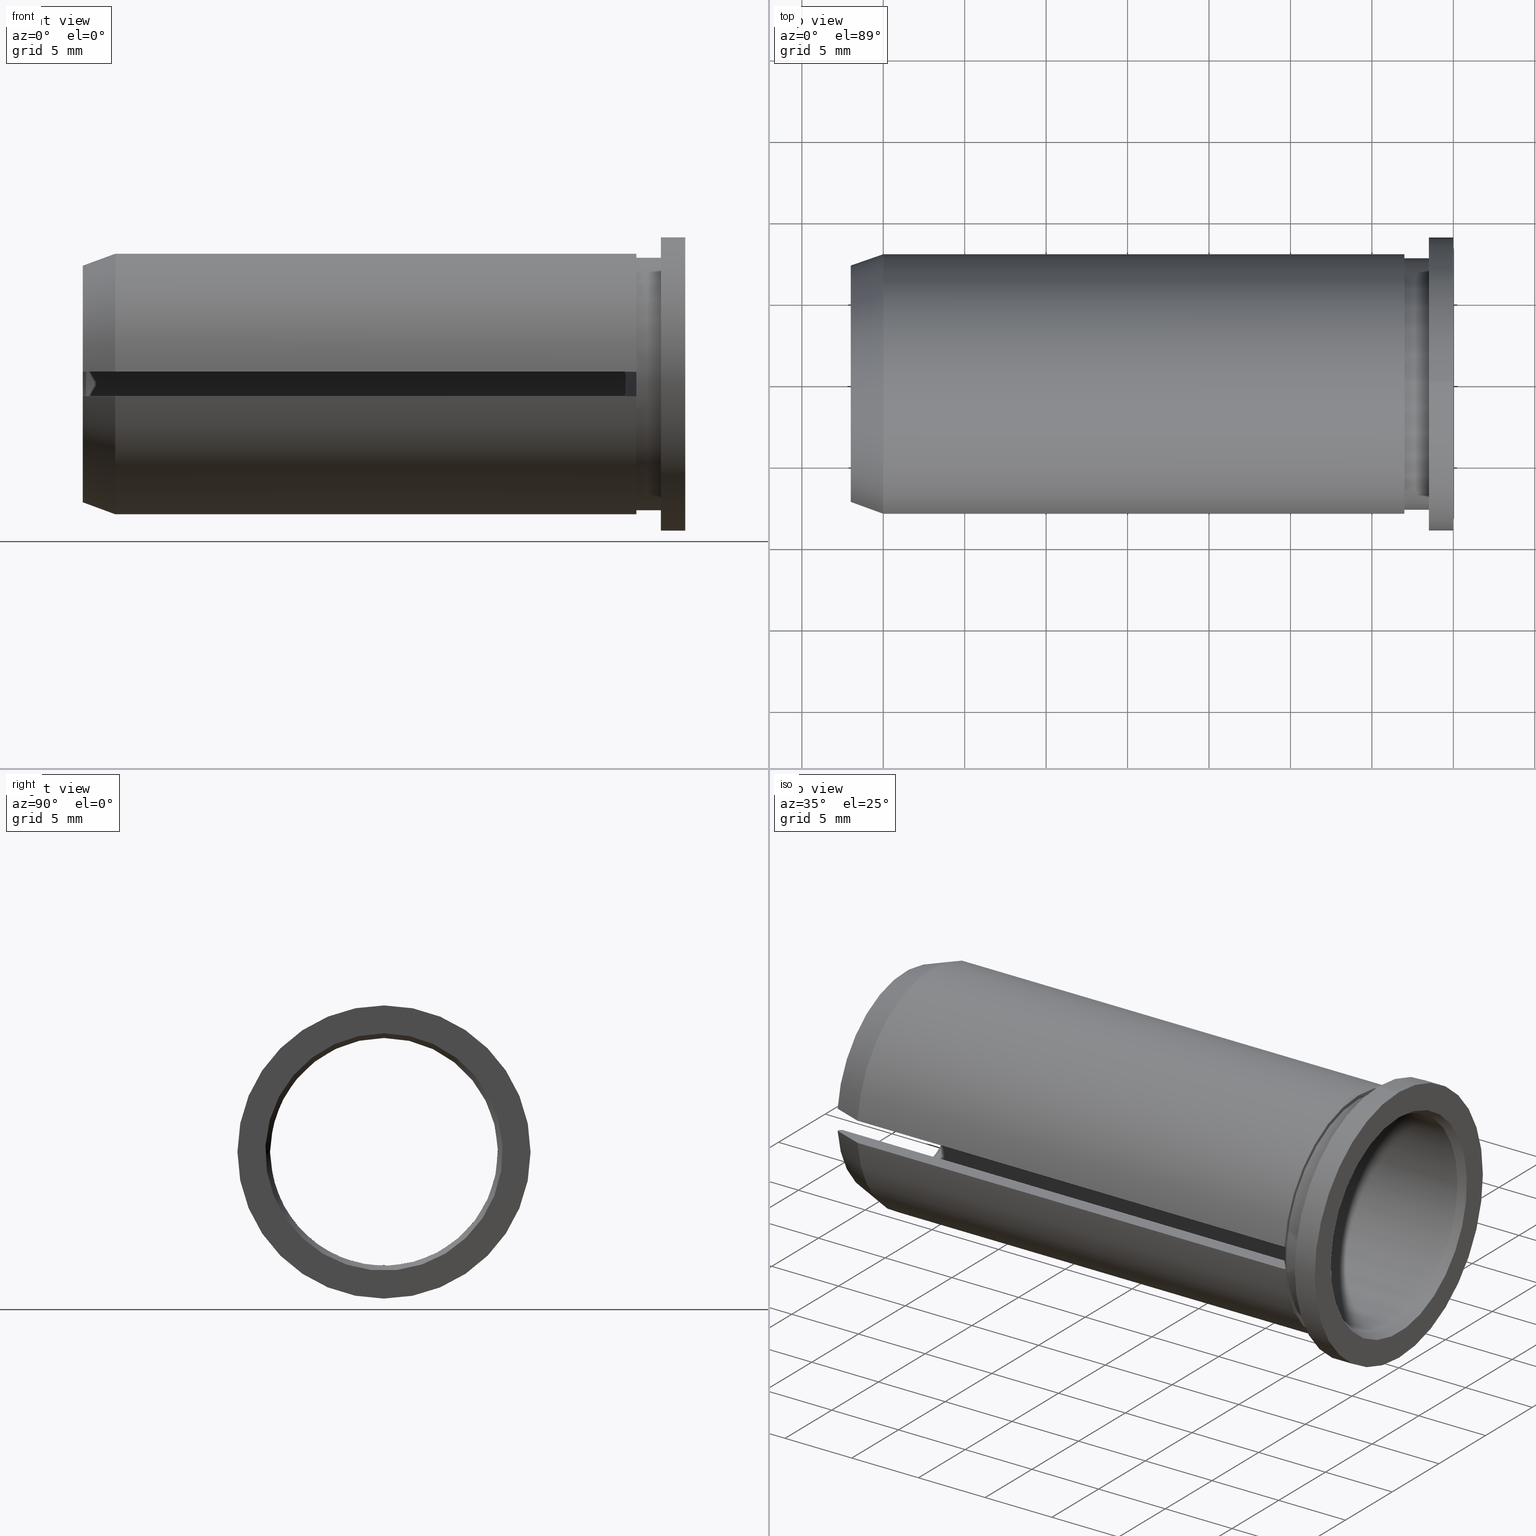
[diagram: canonical four-view strip — front | top / right | iso, engineering-drawing reading convention]
A machine part, canonical four-view strip (front | top / right | iso — engineering-drawing reading convention). The complete STEP part file that produces these views, byte-faithful:
ISO-10303-21;
HEADER;
FILE_DESCRIPTION (( 'STEP AP214' ),
    '1' );
FILE_NAME ('U14.U16.001.037.STEP',
    '2020-08-14T11:08:36',
    ( '' ),
    ( '' ),
    'SwSTEP 2.0',
    'SolidWorks 2017',
    '' );
FILE_SCHEMA (( 'AUTOMOTIVE_DESIGN' ));
ENDSEC;

DATA;
#1 = AXIS2_PLACEMENT_3D ( 'NONE', #269, #412, #409 ) ;
#2 = ADVANCED_FACE ( 'NONE', ( #213, #77 ), #13, .F. ) ;
#3 = DIRECTION ( 'NONE',  ( 0.0000000000000000000, 0.0000000000000000000, -1.000000000000000000 ) ) ;
#4 = FACE_OUTER_BOUND ( 'NONE', #261, .T. ) ;
#5 = ORIENTED_EDGE ( 'NONE', *, *, #322, .F. ) ;
#6 = DIRECTION ( 'NONE',  ( -0.0000000000000000000, 0.0000000000000000000, -1.000000000000000000 ) ) ;
#7 = ADVANCED_FACE ( 'NONE', ( #131 ), #18, .F. ) ;
#8 = EDGE_LOOP ( 'NONE', ( #389, #229, #251, #215 ) ) ;
#9 = FILL_AREA_STYLE_COLOUR ( '', #265 ) ;
#10 = CARTESIAN_POINT ( 'NONE',  ( -0.5000000000000004400, 0.0000000000000000000, 7.000000000000000000 ) ) ;
#11 = AXIS2_PLACEMENT_3D ( 'NONE', #212, #105, #3 ) ;
#12 =( LENGTH_UNIT ( ) NAMED_UNIT ( * ) SI_UNIT ( .MILLI., .METRE. ) );
#13 = CONICAL_SURFACE ( 'NONE', #17, 7.000000000000000000, 0.5235987755983001500 ) ;
#14 = ADVANCED_BREP_SHAPE_REPRESENTATION ( 'U14.U16.001.037', ( #406, #148 ), #88 ) ;
#15 = VERTEX_POINT ( 'NONE', #203 ) ;
#16 = DIRECTION ( 'NONE',  ( -0.0000000000000000000, 0.0000000000000000000, 1.000000000000000000 ) ) ;
#17 = AXIS2_PLACEMENT_3D ( 'NONE', #50, #116, #411 ) ;
#18 = CYLINDRICAL_SURFACE ( 'NONE', #29, 31.50000000000000700 ) ;
#19 = DIRECTION ( 'NONE',  ( -1.000000000000000000, -0.0000000000000000000, -0.0000000000000000000 ) ) ;
#20 = VERTEX_POINT ( 'NONE', #89 ) ;
#21 = EDGE_CURVE ( 'NONE', #301, #301, #206, .T. ) ;
#22 = DIRECTION ( 'NONE',  ( 0.0000000000000000000, -1.000000000000000000, 0.0000000000000000000 ) ) ;
#23 = VERTEX_POINT ( 'NONE', #10 ) ;
#24 = VECTOR ( 'NONE', #147, 1000.000000000000000 ) ;
#25 =( GEOMETRIC_REPRESENTATION_CONTEXT ( 3 ) GLOBAL_UNCERTAINTY_ASSIGNED_CONTEXT ( ( #30 ) ) GLOBAL_UNIT_ASSIGNED_CONTEXT ( ( #172, #361, #228 ) ) REPRESENTATION_CONTEXT ( 'NONE', 'WORKASPACE' ) );
#26 = ORIENTED_EDGE ( 'NONE', *, *, #390, .F. ) ;
#27 = CARTESIAN_POINT ( 'NONE',  ( -3.000000000000000900, 7.750000000000000000, -0.7500000000000000000 ) ) ;
#28 = CARTESIAN_POINT ( 'NONE',  ( -34.99999999999999300, -7.964766161036994400, -0.7500000000000000000 ) ) ;
#29 = AXIS2_PLACEMENT_3D ( 'NONE', #235, #369, #270 ) ;
#30 = UNCERTAINTY_MEASURE_WITH_UNIT (LENGTH_MEASURE( 1.000000000000000100E-005 ), #172, 'distance_accuracy_value', 'NONE');
#31 = DIRECTION ( 'NONE',  ( -1.000000000000000000, 0.0000000000000000000, 0.0000000000000000000 ) ) ;
#32 = DIRECTION ( 'NONE',  ( -1.000000000000000000, -0.0000000000000000000, -0.0000000000000000000 ) ) ;
#33 = COLOUR_RGB ( '',0.6509803921568627600, 0.6196078431372549200, 0.5882352941176470800 ) ;
#34 = EDGE_LOOP ( 'NONE', ( #287, #90, #319, #293 ) ) ;
#35 = B_SPLINE_CURVE_WITH_KNOTS ( 'NONE', 3,
 ( #368, #305, #302, #337 ),
 .UNSPECIFIED., .F., .F.,
 ( 4, 4 ),
 ( 0.0000000000000000000, 0.001500000000000000000 ),
 .UNSPECIFIED. ) ;
#36 = AXIS2_PLACEMENT_3D ( 'NONE', #384, #129, #71 ) ;
#37 = ADVANCED_FACE ( 'NONE', ( #187 ), #383, .F. ) ;
#38 = PRODUCT_DEFINITION_SHAPE ( 'NONE', 'NONE',  #185 ) ;
#39 = CIRCLE ( 'NONE', #386, 9.000000000000000000 ) ;
#40 = VERTEX_POINT ( 'NONE', #174 ) ;
#41 = EDGE_CURVE ( 'NONE', #20, #314, #244, .T. ) ;
#42 = ADVANCED_FACE ( 'NONE', ( #142, #102 ), #44, .F. ) ;
#43 = DIRECTION ( 'NONE',  ( -0.0000000000000000000, 0.0000000000000000000, -1.000000000000000000 ) ) ;
#44 = CYLINDRICAL_SURFACE ( 'NONE', #362, 7.000000000000000000 ) ;
#45 = PRODUCT_CONTEXT ( 'NONE', #231, 'mechanical' ) ;
#46 = CARTESIAN_POINT ( 'NONE',  ( 0.0000000000000000000, 0.0000000000000000000, 0.0000000000000000000 ) ) ;
#47 = EDGE_CURVE ( 'NONE', #234, #240, #200, .T. ) ;
#48 = FACE_BOUND ( 'NONE', #74, .T. ) ;
#49 = APPLICATION_PROTOCOL_DEFINITION ( 'draft international standard', 'automotive_design', 1998, #231 ) ;
#50 = CARTESIAN_POINT ( 'NONE',  ( -0.5000000000000004400, 0.0000000000000000000, 0.0000000000000000000 ) ) ;
#51 = AXIS2_PLACEMENT_3D ( 'NONE', #216, #357, #222 ) ;
#52 = EDGE_LOOP ( 'NONE', ( #162 ) ) ;
#53 = EDGE_LOOP ( 'NONE', ( #193 ) ) ;
#54 = DIRECTION ( 'NONE',  ( -1.000000000000000000, -0.0000000000000000000, -0.0000000000000000000 ) ) ;
#55 = EDGE_CURVE ( 'NONE', #202, #15, #95, .T. ) ;
#56 = DIRECTION ( 'NONE',  ( 0.0000000000000000000, 0.0000000000000000000, -1.000000000000000000 ) ) ;
#57 = CARTESIAN_POINT ( 'NONE',  ( -36.79999999999999700, -6.959705453537528000, 0.7500000000000000000 ) ) ;
#58 = AXIS2_PLACEMENT_3D ( 'NONE', #232, #199, #16 ) ;
#59 = FACE_OUTER_BOUND ( 'NONE', #338, .T. ) ;
#60 = EDGE_LOOP ( 'NONE', ( #132 ) ) ;
#61 = CARTESIAN_POINT ( 'NONE',  ( -3.000000000000002700, -7.964766161036996200, 0.7500000000000000000 ) ) ;
#62 = EDGE_CURVE ( 'NONE', #86, #100, #154, .T. ) ;
#63 = DIRECTION ( 'NONE',  ( -1.000000000000000000, 0.0000000000000000000, 0.0000000000000000000 ) ) ;
#64 = B_SPLINE_CURVE_WITH_KNOTS ( 'NONE', 3,
 ( #243, #311, #382, #57 ),
 .UNSPECIFIED., .F., .F.,
 ( 4, 4 ),
 ( 0.008159521160765015300, 0.008390790686471119900 ),
 .UNSPECIFIED. ) ;
#65 = EDGE_CURVE ( 'NONE', #72, #72, #39, .T. ) ;
#66 = B_SPLINE_CURVE_WITH_KNOTS ( 'NONE', 3,
 ( #70, #75, #290, #315 ),
 .UNSPECIFIED., .F., .F.,
 ( 4, 4 ),
 ( 0.009711911398750116400, 0.01184148182100318500 ),
 .UNSPECIFIED. ) ;
#67 = EDGE_CURVE ( 'NONE', #303, #394, #35, .T. ) ;
#68 = ADVANCED_FACE ( 'NONE', ( #370, #48 ), #373, .F. ) ;
#69 = ORIENTED_EDGE ( 'NONE', *, *, #427, .T. ) ;
#70 = CARTESIAN_POINT ( 'NONE',  ( -34.99999999999999300, -7.964766161036994400, 0.7500000000000000000 ) ) ;
#71 = DIRECTION ( 'NONE',  ( 0.0000000000000000000, 0.0000000000000000000, 1.000000000000000000 ) ) ;
#72 = VERTEX_POINT ( 'NONE', #195 ) ;
#73 = CIRCLE ( 'NONE', #424, 7.115470053837925400 ) ;
#74 = EDGE_LOOP ( 'NONE', ( #166 ) ) ;
#75 = CARTESIAN_POINT ( 'NONE',  ( -35.66670156923833400, -7.721033178614087300, 0.7500000000000000000 ) ) ;
#76 =( GEOMETRIC_REPRESENTATION_CONTEXT ( 3 ) GLOBAL_UNCERTAINTY_ASSIGNED_CONTEXT ( ( #247 ) ) GLOBAL_UNIT_ASSIGNED_CONTEXT ( ( #262, #263, #227 ) ) REPRESENTATION_CONTEXT ( 'NONE', 'WORKASPACE' ) );
#77 = FACE_BOUND ( 'NONE', #273, .T. ) ;
#78 = CARTESIAN_POINT ( 'NONE',  ( 0.0000000000000000000, 0.0000000000000000000, 7.288675134594814000 ) ) ;
#79 = ORIENTED_EDGE ( 'NONE', *, *, #177, .T. ) ;
#80 = CARTESIAN_POINT ( 'NONE',  ( -38.58775536857143600, -6.959705453537528000, -0.7500000000000000000 ) ) ;
#81 = AXIS2_PLACEMENT_3D ( 'NONE', #139, #253, #355 ) ;
#82 = DIRECTION ( 'NONE',  ( 1.000000000000000000, 0.0000000000000000000, 0.0000000000000000000 ) ) ;
#83 = EDGE_CURVE ( 'NONE', #20, #135, #377, .T. ) ;
#84 = CIRCLE ( 'NONE', #36, 7.272059531467589500 ) ;
#85 = DIRECTION ( 'NONE',  ( -1.000000000000000000, -0.0000000000000000000, -0.0000000000000000000 ) ) ;
#86 = VERTEX_POINT ( 'NONE', #340 ) ;
#87 = DIRECTION ( 'NONE',  ( 0.0000000000000000000, 0.0000000000000000000, 1.000000000000000000 ) ) ;
#88 =( GEOMETRIC_REPRESENTATION_CONTEXT ( 3 ) GLOBAL_UNCERTAINTY_ASSIGNED_CONTEXT ( ( #423 ) ) GLOBAL_UNIT_ASSIGNED_CONTEXT ( ( #12, #110, #329 ) ) REPRESENTATION_CONTEXT ( 'NONE', 'WORKASPACE' ) );
#89 = CARTESIAN_POINT ( 'NONE',  ( -3.000000000000002700, -7.836232103263177400, 0.7500000000000000000 ) ) ;
#90 = ORIENTED_EDGE ( 'NONE', *, *, #159, .T. ) ;
#91 = EDGE_CURVE ( 'NONE', #240, #86, #64, .T. ) ;
#92 = CARTESIAN_POINT ( 'NONE',  ( -36.79999999999999700, -6.959705453537528000, -0.7500000000000000000 ) ) ;
#93 = VERTEX_POINT ( 'NONE', #78 ) ;
#94 = CARTESIAN_POINT ( 'NONE',  ( 0.0000000000000000000, 0.0000000000000000000, 0.0000000000000000000 ) ) ;
#95 = LINE ( 'NONE', #118, #24 ) ;
#96 = ORIENTED_EDGE ( 'NONE', *, *, #390, .T. ) ;
#97 = AXIS2_PLACEMENT_3D ( 'NONE', #258, #43, #257 ) ;
#98 = CARTESIAN_POINT ( 'NONE',  ( -34.99999999999999300, -7.964766161036994400, 0.7500000000000000000 ) ) ;
#99 = EDGE_LOOP ( 'NONE', ( #339 ) ) ;
#100 = VERTEX_POINT ( 'NONE', #92 ) ;
#101 = EDGE_CURVE ( 'NONE', #40, #202, #316, .T. ) ;
#102 = FACE_OUTER_BOUND ( 'NONE', #125, .T. ) ;
#103 = ORIENTED_EDGE ( 'NONE', *, *, #133, .T. ) ;
#104 = PLANE ( 'NONE',  #310 ) ;
#105 = DIRECTION ( 'NONE',  ( 1.000000000000000000, 0.0000000000000000000, 0.0000000000000000000 ) ) ;
#106 = LINE ( 'NONE', #183, #307 ) ;
#107 = ORIENTED_EDGE ( 'NONE', *, *, #101, .T. ) ;
#108 = SURFACE_STYLE_USAGE ( .BOTH. , #363 ) ;
#109 = MECHANICAL_DESIGN_GEOMETRIC_PRESENTATION_REPRESENTATION (  '', ( #404 ), #25 ) ;
#110 =( NAMED_UNIT ( * ) PLANE_ANGLE_UNIT ( ) SI_UNIT ( $, .RADIAN. ) );
#111 = EDGE_CURVE ( 'NONE', #240, #15, #73, .T. ) ;
#112 = LINE ( 'NONE', #123, #282 ) ;
#113 = CARTESIAN_POINT ( 'NONE',  ( -3.696983839633665600, -6.959705453537527100, 0.7500000000000000000 ) ) ;
#114 = CARTESIAN_POINT ( 'NONE',  ( -37.00000000000000000, 7.272059531467589500, 0.7500000000000000000 ) ) ;
#115 = AXIS2_PLACEMENT_3D ( 'NONE', #126, #178, #276 ) ;
#116 = DIRECTION ( 'NONE',  ( 1.000000000000000000, 0.0000000000000000000, 0.0000000000000000000 ) ) ;
#117 = FACE_OUTER_BOUND ( 'NONE', #245, .T. ) ;
#118 = CARTESIAN_POINT ( 'NONE',  ( -37.00000000000000000, 7.272059531467589500, -0.7500000000000000000 ) ) ;
#119 = ORIENTED_EDGE ( 'NONE', *, *, #62, .T. ) ;
#120 = ORIENTED_EDGE ( 'NONE', *, *, #122, .T. ) ;
#121 = CARTESIAN_POINT ( 'NONE',  ( -37.00000000000000000, 0.0000000000000000000, 0.0000000000000000000 ) ) ;
#122 = EDGE_CURVE ( 'NONE', #135, #359, #112, .T. ) ;
#123 = CARTESIAN_POINT ( 'NONE',  ( -38.58775536857143600, -7.964766161036994400, 0.7500000000000000000 ) ) ;
#124 = CIRCLE ( 'NONE', #318, 31.50000000000000700 ) ;
#125 = EDGE_LOOP ( 'NONE', ( #119, #69, #415, #372 ) ) ;
#126 = CARTESIAN_POINT ( 'NONE',  ( -3.000000000000000900, 7.750000000000000000, 0.0000000000000000000 ) ) ;
#127 = DIRECTION ( 'NONE',  ( 0.0000000000000000000, -1.000000000000000000, 0.0000000000000000000 ) ) ;
#128 = CARTESIAN_POINT ( 'NONE',  ( -38.58775536857143600, 0.0000000000000000000, 0.0000000000000000000 ) ) ;
#129 = DIRECTION ( 'NONE',  ( -1.000000000000000000, -0.0000000000000000000, -0.0000000000000000000 ) ) ;
#130 = FACE_OUTER_BOUND ( 'NONE', #175, .T. ) ;
#131 = FACE_OUTER_BOUND ( 'NONE', #176, .T. ) ;
#132 = ORIENTED_EDGE ( 'NONE', *, *, #252, .F. ) ;
#133 = EDGE_CURVE ( 'NONE', #86, #394, #291, .T. ) ;
#134 = CIRCLE ( 'NONE', #81, 7.999999999999996400 ) ;
#135 = VERTEX_POINT ( 'NONE', #61 ) ;
#136 = PLANE ( 'NONE',  #274 ) ;
#137 = CARTESIAN_POINT ( 'NONE',  ( -3.000000000000002700, -7.964766161036996200, -0.7500000000000000000 ) ) ;
#138 = ADVANCED_FACE ( 'NONE', ( #197, #192 ), #241, .F. ) ;
#139 = CARTESIAN_POINT ( 'NONE',  ( -34.99999999999999300, 0.0000000000000000000, 0.0000000000000000000 ) ) ;
#140 = VECTOR ( 'NONE', #22, 1000.000000000000000 ) ;
#141 = ORIENTED_EDGE ( 'NONE', *, *, #83, .F. ) ;
#142 = FACE_OUTER_BOUND ( 'NONE', #60, .T. ) ;
#143 = PRODUCT_RELATED_PRODUCT_CATEGORY ( 'part', '', ( #158 ) ) ;
#144 = SURFACE_SIDE_STYLE ('',( #219 ) ) ;
#145 = FACE_OUTER_BOUND ( 'NONE', #402, .T. ) ;
#146 = ORIENTED_EDGE ( 'NONE', *, *, #67, .F. ) ;
#147 = DIRECTION ( 'NONE',  ( 0.0000000000000000000, 1.000000000000000000, 0.0000000000000000000 ) ) ;
#148 = AXIS2_PLACEMENT_3D ( 'NONE', #46, #327, #82 ) ;
#149 = CARTESIAN_POINT ( 'NONE',  ( -3.000000000000002700, 0.0000000000000000000, 0.0000000000000000000 ) ) ;
#150 = CARTESIAN_POINT ( 'NONE',  ( -37.00000000000000000, -7.233280709968928700, -0.7500000000000000000 ) ) ;
#151 = ORIENTED_EDGE ( 'NONE', *, *, #236, .T. ) ;
#152 = CARTESIAN_POINT ( 'NONE',  ( -37.00000000000000000, -7.233280709968928700, -0.7500000000000000000 ) ) ;
#153 = CARTESIAN_POINT ( 'NONE',  ( -38.58775536857143600, -6.959705453537528000, 0.7500000000000000000 ) ) ;
#154 = CIRCLE ( 'NONE', #1, 7.000000000000000000 ) ;
#155 = ORIENTED_EDGE ( 'NONE', *, *, #236, .F. ) ;
#156 = EDGE_CURVE ( 'NONE', #20, #394, #124, .T. ) ;
#157 = CARTESIAN_POINT ( 'NONE',  ( -37.00000000000000000, 7.272059531467589500, 0.0000000000000000000 ) ) ;
#158 = PRODUCT ( 'U14.U16.001.037', 'U14.U16.001.037', '', ( #45 ) ) ;
#159 = EDGE_CURVE ( 'NONE', #15, #100, #349, .T. ) ;
#160 = PRESENTATION_STYLE_ASSIGNMENT (( #108 ) ) ;
#161 = ORIENTED_EDGE ( 'NONE', *, *, #427, .F. ) ;
#162 = ORIENTED_EDGE ( 'NONE', *, *, #398, .F. ) ;
#163 = PRESENTATION_LAYER_ASSIGNMENT (  '', '', ( #404 ) ) ;
#164 = DIRECTION ( 'NONE',  ( 1.000000000000000000, 0.0000000000000000000, 0.0000000000000000000 ) ) ;
#165 = VECTOR ( 'NONE', #198, 1000.000000000000000 ) ;
#166 = ORIENTED_EDGE ( 'NONE', *, *, #205, .T. ) ;
#167 = CARTESIAN_POINT ( 'NONE',  ( -3.696983839633665600, -6.959705453537527100, -0.7500000000000000000 ) ) ;
#168 = DIRECTION ( 'NONE',  ( -1.000000000000000000, -0.0000000000000000000, -0.0000000000000000000 ) ) ;
#169 = ORIENTED_EDGE ( 'NONE', *, *, #41, .F. ) ;
#170 = ORIENTED_EDGE ( 'NONE', *, *, #177, .F. ) ;
#171 = FILL_AREA_STYLE ('',( #9 ) ) ;
#172 =( LENGTH_UNIT ( ) NAMED_UNIT ( * ) SI_UNIT ( .MILLI., .METRE. ) );
#173 = FACE_OUTER_BOUND ( 'NONE', #260, .T. ) ;
#174 = CARTESIAN_POINT ( 'NONE',  ( -34.99999999999999300, -7.964766161036994400, -0.7500000000000000000 ) ) ;
#175 = EDGE_LOOP ( 'NONE', ( #308 ) ) ;
#176 = EDGE_LOOP ( 'NONE', ( #155, #169, #343, #146 ) ) ;
#177 = EDGE_CURVE ( 'NONE', #314, #279, #351, .T. ) ;
#178 = DIRECTION ( 'NONE',  ( -1.000000000000000000, 0.0000000000000000000, -0.0000000000000000000 ) ) ;
#179 = FACE_OUTER_BOUND ( 'NONE', #328, .T. ) ;
#180 = ORIENTED_EDGE ( 'NONE', *, *, #277, .T. ) ;
#181 = CARTESIAN_POINT ( 'NONE',  ( -3.000000000000000900, 7.750000000000000000, 0.7500000000000000000 ) ) ;
#182 = CARTESIAN_POINT ( 'NONE',  ( -0.5000000000000004400, 0.0000000000000000000, 0.0000000000000000000 ) ) ;
#183 = CARTESIAN_POINT ( 'NONE',  ( -38.58775536857143600, -7.964766161036994400, -0.7500000000000000000 ) ) ;
#184 = LINE ( 'NONE', #80, #375 ) ;
#185 = PRODUCT_DEFINITION ( 'UNKNOWN', '', #354, #209 ) ;
#186 = ADVANCED_FACE ( 'NONE', ( #179 ), #313, .T. ) ;
#187 = FACE_OUTER_BOUND ( 'NONE', #34, .T. ) ;
#188 = ORIENTED_EDGE ( 'NONE', *, *, #205, .F. ) ;
#189 = PLANE ( 'NONE',  #11 ) ;
#190 = ADVANCED_FACE ( 'NONE', ( #342, #117 ), #285, .T. ) ;
#191 = PLANE ( 'NONE',  #97 ) ;
#192 = FACE_BOUND ( 'NONE', #53, .T. ) ;
#193 = ORIENTED_EDGE ( 'NONE', *, *, #21, .T. ) ;
#194 = ORIENTED_EDGE ( 'NONE', *, *, #217, .T. ) ;
#195 = CARTESIAN_POINT ( 'NONE',  ( -1.500000000000001300, 0.0000000000000000000, 9.000000000000000000 ) ) ;
#196 = CARTESIAN_POINT ( 'NONE',  ( -1.500000000000001300, 0.0000000000000000000, 7.750000000000000000 ) ) ;
#197 = FACE_OUTER_BOUND ( 'NONE', #201, .T. ) ;
#198 = DIRECTION ( 'NONE',  ( 0.0000000000000000000, 1.000000000000000000, 0.0000000000000000000 ) ) ;
#199 = DIRECTION ( 'NONE',  ( -1.000000000000000000, 0.0000000000000000000, -0.0000000000000000000 ) ) ;
#200 = LINE ( 'NONE', #114, #165 ) ;
#201 = EDGE_LOOP ( 'NONE', ( #417, #79, #26, #141 ) ) ;
#202 = VERTEX_POINT ( 'NONE', #150 ) ;
#203 = CARTESIAN_POINT ( 'NONE',  ( -37.00000000000000000, -7.075833101979178300, -0.7500000000000000000 ) ) ;
#204 = DIRECTION ( 'NONE',  ( 0.0000000000000000000, 0.0000000000000000000, 1.000000000000000000 ) ) ;
#205 = EDGE_CURVE ( 'NONE', #93, #93, #278, .T. ) ;
#206 = CIRCLE ( 'NONE', #242, 7.750000000000000000 ) ;
#207 = ORIENTED_EDGE ( 'NONE', *, *, #296, .F. ) ;
#208 = CARTESIAN_POINT ( 'NONE',  ( -38.58775536857143600, 0.0000000000000000000, 0.0000000000000000000 ) ) ;
#209 = PRODUCT_DEFINITION_CONTEXT ( 'detailed design', #294, 'design' ) ;
#210 = CARTESIAN_POINT ( 'NONE',  ( -36.93333177780486700, -7.037126569982963700, -0.7500000000000000000 ) ) ;
#211 = DIRECTION ( 'NONE',  ( -1.000000000000000000, -0.0000000000000000000, -0.0000000000000000000 ) ) ;
#212 = CARTESIAN_POINT ( 'NONE',  ( -1.500000000000000400, 9.000000000000000000, 0.0000000000000000000 ) ) ;
#213 = FACE_OUTER_BOUND ( 'NONE', #425, .T. ) ;
#214 = AXIS2_PLACEMENT_3D ( 'NONE', #226, #346, #31 ) ;
#215 = ORIENTED_EDGE ( 'NONE', *, *, #47, .F. ) ;
#216 = CARTESIAN_POINT ( 'NONE',  ( 0.0000000000000000000, 0.0000000000000000000, 0.0000000000000000000 ) ) ;
#217 = EDGE_CURVE ( 'NONE', #400, #400, #401, .T. ) ;
#218 = SURFACE_STYLE_FILL_AREA ( #171 ) ;
#219 = SURFACE_STYLE_FILL_AREA ( #403 ) ;
#220 = ORIENTED_EDGE ( 'NONE', *, *, #156, .F. ) ;
#221 = EDGE_CURVE ( 'NONE', #359, #40, #134, .T. ) ;
#222 = DIRECTION ( 'NONE',  ( 0.0000000000000000000, 0.0000000000000000000, 1.000000000000000000 ) ) ;
#223 = CARTESIAN_POINT ( 'NONE',  ( -3.000000000000002700, -7.836232103263177400, -0.7500000000000000000 ) ) ;
#224 = CIRCLE ( 'NONE', #214, 31.50000000000000700 ) ;
#225 = ORIENTED_EDGE ( 'NONE', *, *, #277, .F. ) ;
#226 = CARTESIAN_POINT ( 'NONE',  ( -27.99999999999999600, -27.00000000000000000, -0.7500000000000000000 ) ) ;
#227 =( NAMED_UNIT ( * ) SI_UNIT ( $, .STERADIAN. ) SOLID_ANGLE_UNIT ( ) );
#228 =( NAMED_UNIT ( * ) SI_UNIT ( $, .STERADIAN. ) SOLID_ANGLE_UNIT ( ) );
#229 = ORIENTED_EDGE ( 'NONE', *, *, #55, .T. ) ;
#230 = CARTESIAN_POINT ( 'NONE',  ( -3.000000000000002700, 0.0000000000000000000, 0.0000000000000000000 ) ) ;
#231 = APPLICATION_CONTEXT ( 'automotive_design' ) ;
#232 = CARTESIAN_POINT ( 'NONE',  ( 0.0000000000000000000, 7.288675134594814000, 0.0000000000000000000 ) ) ;
#233 = CIRCLE ( 'NONE', #304, 7.750000000000000000 ) ;
#234 = VERTEX_POINT ( 'NONE', #374 ) ;
#235 = CARTESIAN_POINT ( 'NONE',  ( -27.99999999999999600, -27.00000000000000000, -0.7500000000000000000 ) ) ;
#236 = EDGE_CURVE ( 'NONE', #314, #303, #224, .T. ) ;
#237 = CARTESIAN_POINT ( 'NONE',  ( -1.500000000000001300, 0.0000000000000000000, 0.0000000000000000000 ) ) ;
#238 = DIRECTION ( 'NONE',  ( 0.0000000000000000000, 0.0000000000000000000, 1.000000000000000000 ) ) ;
#239 = CARTESIAN_POINT ( 'NONE',  ( -35.66670156923833400, -7.721033178614087300, -0.7500000000000000000 ) ) ;
#240 = VERTEX_POINT ( 'NONE', #323 ) ;
#241 = PLANE ( 'NONE',  #115 ) ;
#242 = AXIS2_PLACEMENT_3D ( 'NONE', #149, #54, #300 ) ;
#243 = CARTESIAN_POINT ( 'NONE',  ( -37.00000000000000000, -7.075833101979178300, 0.7500000000000000000 ) ) ;
#244 = LINE ( 'NONE', #405, #266 ) ;
#245 = EDGE_LOOP ( 'NONE', ( #194 ) ) ;
#246 = DIRECTION ( 'NONE',  ( 1.000000000000000000, 0.0000000000000000000, 0.0000000000000000000 ) ) ;
#247 = UNCERTAINTY_MEASURE_WITH_UNIT (LENGTH_MEASURE( 1.000000000000000100E-005 ), #262, 'distance_accuracy_value', 'NONE');
#248 = DIRECTION ( 'NONE',  ( 0.0000000000000000000, 0.0000000000000000000, 1.000000000000000000 ) ) ;
#249 = EDGE_LOOP ( 'NONE', ( #103, #220, #334, #120, #180, #421, #410 ) ) ;
#250 = AXIS2_PLACEMENT_3D ( 'NONE', #289, #168, #248 ) ;
#251 = ORIENTED_EDGE ( 'NONE', *, *, #111, .F. ) ;
#252 = EDGE_CURVE ( 'NONE', #23, #23, #255, .T. ) ;
#253 = DIRECTION ( 'NONE',  ( -1.000000000000000000, -0.0000000000000000000, -0.0000000000000000000 ) ) ;
#254 = ADVANCED_FACE ( 'NONE', ( #173 ), #364, .T. ) ;
#255 = CIRCLE ( 'NONE', #416, 7.000000000000000000 ) ;
#256 = EDGE_LOOP ( 'NONE', ( #371 ) ) ;
#257 = DIRECTION ( 'NONE',  ( -1.000000000000000000, 0.0000000000000000000, 0.0000000000000000000 ) ) ;
#258 = CARTESIAN_POINT ( 'NONE',  ( -27.99999999999999600, -27.00000000000000000, -0.7500000000000000000 ) ) ;
#259 = CARTESIAN_POINT ( 'NONE',  ( 0.0000000000000000000, 0.0000000000000000000, 9.000000000000000000 ) ) ;
#260 = EDGE_LOOP ( 'NONE', ( #283, #107, #5, #225 ) ) ;
#261 = EDGE_LOOP ( 'NONE', ( #426 ) ) ;
#262 =( LENGTH_UNIT ( ) NAMED_UNIT ( * ) SI_UNIT ( .MILLI., .METRE. ) );
#263 =( NAMED_UNIT ( * ) PLANE_ANGLE_UNIT ( ) SI_UNIT ( $, .RADIAN. ) );
#264 = AXIS2_PLACEMENT_3D ( 'NONE', #94, #211, #418 ) ;
#265 = COLOUR_RGB ( '',0.6509803921568627600, 0.6196078431372549200, 0.5882352941176470800 ) ;
#266 = VECTOR ( 'NONE', #56, 1000.000000000000000 ) ;
#267 = SURFACE_STYLE_USAGE ( .BOTH. , #144 ) ;
#268 = ORIENTED_EDGE ( 'NONE', *, *, #101, .F. ) ;
#269 = CARTESIAN_POINT ( 'NONE',  ( -36.79999999999999700, 0.0000000000000000000, 0.0000000000000000000 ) ) ;
#270 = DIRECTION ( 'NONE',  ( 1.000000000000000000, 0.0000000000000000000, 0.0000000000000000000 ) ) ;
#271 = FACE_BOUND ( 'NONE', #52, .T. ) ;
#272 = ORIENTED_EDGE ( 'NONE', *, *, #122, .F. ) ;
#273 = EDGE_LOOP ( 'NONE', ( #325 ) ) ;
#274 = AXIS2_PLACEMENT_3D ( 'NONE', #157, #326, #395 ) ;
#275 = CARTESIAN_POINT ( 'NONE',  ( -36.33337186691171900, -7.477214302540265800, -0.7500000000000000000 ) ) ;
#276 = DIRECTION ( 'NONE',  ( -0.0000000000000000000, 0.0000000000000000000, 1.000000000000000000 ) ) ;
#277 = EDGE_CURVE ( 'NONE', #359, #234, #66, .T. ) ;
#278 = CIRCLE ( 'NONE', #264, 7.288675134594814000 ) ;
#279 = VERTEX_POINT ( 'NONE', #137 ) ;
#280 = CARTESIAN_POINT ( 'NONE',  ( -36.86666508525750900, -6.998417398494318300, -0.7500000000000000000 ) ) ;
#281 = PRESENTATION_LAYER_ASSIGNMENT (  '', '', ( #350 ) ) ;
#282 = VECTOR ( 'NONE', #380, 1000.000000000000000 ) ;
#283 = ORIENTED_EDGE ( 'NONE', *, *, #221, .T. ) ;
#284 = ADVANCED_FACE ( 'NONE', ( #388 ), #136, .F. ) ;
#285 = CYLINDRICAL_SURFACE ( 'NONE', #347, 9.000000000000000000 ) ;
#286 = AXIS2_PLACEMENT_3D ( 'NONE', #413, #164, #353 ) ;
#287 = ORIENTED_EDGE ( 'NONE', *, *, #111, .T. ) ;
#288 = ADVANCED_FACE ( 'NONE', ( #271, #130 ), #189, .F. ) ;
#289 = CARTESIAN_POINT ( 'NONE',  ( -38.58775536857143600, 0.0000000000000000000, 0.0000000000000000000 ) ) ;
#290 = CARTESIAN_POINT ( 'NONE',  ( -36.33337186691171900, -7.477214302540265800, 0.7500000000000000000 ) ) ;
#291 = LINE ( 'NONE', #153, #408 ) ;
#292 = DIRECTION ( 'NONE',  ( -1.000000000000000000, 0.0000000000000000000, 0.0000000000000000000 ) ) ;
#293 = ORIENTED_EDGE ( 'NONE', *, *, #91, .F. ) ;
#294 = APPLICATION_CONTEXT ( 'automotive_design' ) ;
#295 = CARTESIAN_POINT ( 'NONE',  ( -3.000000000000002700, 0.0000000000000000000, 7.750000000000000000 ) ) ;
#296 = EDGE_CURVE ( 'NONE', #279, #40, #106, .T. ) ;
#297 = DIRECTION ( 'NONE',  ( -1.000000000000000000, -0.0000000000000000000, -0.0000000000000000000 ) ) ;
#298 = DIRECTION ( 'NONE',  ( -1.000000000000000000, -0.0000000000000000000, -0.0000000000000000000 ) ) ;
#299 = DIRECTION ( 'NONE',  ( -1.000000000000000000, -0.0000000000000000000, -0.0000000000000000000 ) ) ;
#300 = DIRECTION ( 'NONE',  ( 0.0000000000000000000, 0.0000000000000000000, 1.000000000000000000 ) ) ;
#301 = VERTEX_POINT ( 'NONE', #295 ) ;
#302 = CARTESIAN_POINT ( 'NONE',  ( -3.652553019224725500, -7.013587044145560300, 0.2500000000000006700 ) ) ;
#303 = VERTEX_POINT ( 'NONE', #167 ) ;
#304 = AXIS2_PLACEMENT_3D ( 'NONE', #330, #298, #332 ) ;
#305 = CARTESIAN_POINT ( 'NONE',  ( -3.652553019224722900, -7.013587044145560300, -0.2500000000000000000 ) ) ;
#306 = DIRECTION ( 'NONE',  ( 0.0000000000000000000, 0.0000000000000000000, 1.000000000000000000 ) ) ;
#307 = VECTOR ( 'NONE', #391, 1000.000000000000000 ) ;
#308 = ORIENTED_EDGE ( 'NONE', *, *, #65, .T. ) ;
#309 = DIRECTION ( 'NONE',  ( -1.000000000000000000, -0.0000000000000000000, -0.0000000000000000000 ) ) ;
#310 = AXIS2_PLACEMENT_3D ( 'NONE', #392, #6, #292 ) ;
#311 = CARTESIAN_POINT ( 'NONE',  ( -36.93333177780486700, -7.037126569982963700, 0.7500000000000000000 ) ) ;
#312 = DIRECTION ( 'NONE',  ( -1.000000000000000000, -0.0000000000000000000, -0.0000000000000000000 ) ) ;
#313 = CYLINDRICAL_SURFACE ( 'NONE', #407, 7.999999999999998200 ) ;
#314 = VERTEX_POINT ( 'NONE', #223 ) ;
#315 = CARTESIAN_POINT ( 'NONE',  ( -37.00000000000000000, -7.233280709968928700, 0.7500000000000000000 ) ) ;
#316 = B_SPLINE_CURVE_WITH_KNOTS ( 'NONE', 3,
 ( #28, #239, #275, #152 ),
 .UNSPECIFIED., .F., .F.,
 ( 4, 4 ),
 ( 0.009711911398750116400, 0.01184148182100318500 ),
 .UNSPECIFIED. ) ;
#317 = ADVANCED_FACE ( 'NONE', ( #59 ), #191, .F. ) ;
#318 = AXIS2_PLACEMENT_3D ( 'NONE', #376, #204, #63 ) ;
#319 = ORIENTED_EDGE ( 'NONE', *, *, #62, .F. ) ;
#320 = ORIENTED_EDGE ( 'NONE', *, *, #296, .T. ) ;
#321 = ADVANCED_FACE ( 'NONE', ( #420 ), #104, .T. ) ;
#322 = EDGE_CURVE ( 'NONE', #234, #202, #84, .T. ) ;
#323 = CARTESIAN_POINT ( 'NONE',  ( -37.00000000000000000, -7.075833101979178300, 0.7500000000000000000 ) ) ;
#324 = PRESENTATION_STYLE_ASSIGNMENT (( #267 ) ) ;
#325 = ORIENTED_EDGE ( 'NONE', *, *, #252, .T. ) ;
#326 = DIRECTION ( 'NONE',  ( 1.000000000000000000, 0.0000000000000000000, 0.0000000000000000000 ) ) ;
#327 = DIRECTION ( 'NONE',  ( 0.0000000000000000000, 0.0000000000000000000, 1.000000000000000000 ) ) ;
#328 = EDGE_LOOP ( 'NONE', ( #96, #320, #385, #272 ) ) ;
#329 =( NAMED_UNIT ( * ) SI_UNIT ( $, .STERADIAN. ) SOLID_ANGLE_UNIT ( ) );
#330 = CARTESIAN_POINT ( 'NONE',  ( -1.500000000000001300, 0.0000000000000000000, 0.0000000000000000000 ) ) ;
#331 = AXIS2_PLACEMENT_3D ( 'NONE', #230, #297, #366 ) ;
#332 = DIRECTION ( 'NONE',  ( 0.0000000000000000000, 0.0000000000000000000, 1.000000000000000000 ) ) ;
#333 = CIRCLE ( 'NONE', #331, 8.000000000000000000 ) ;
#334 = ORIENTED_EDGE ( 'NONE', *, *, #83, .T. ) ;
#335 = CARTESIAN_POINT ( 'NONE',  ( -37.00000000000000000, 0.0000000000000000000, 0.0000000000000000000 ) ) ;
#336 = CARTESIAN_POINT ( 'NONE',  ( -38.58775536857143600, 0.0000000000000000000, 0.0000000000000000000 ) ) ;
#337 = CARTESIAN_POINT ( 'NONE',  ( -3.696983839633665600, -6.959705453537527100, 0.7500000000000000000 ) ) ;
#338 = EDGE_LOOP ( 'NONE', ( #352, #360, #268, #207, #170, #151, #161 ) ) ;
#339 = ORIENTED_EDGE ( 'NONE', *, *, #65, .F. ) ;
#340 = CARTESIAN_POINT ( 'NONE',  ( -36.79999999999999700, -6.959705453537528000, 0.7500000000000000000 ) ) ;
#341 = CARTESIAN_POINT ( 'NONE',  ( -37.00000000000000000, -7.075833101979178300, -0.7500000000000000000 ) ) ;
#342 = FACE_OUTER_BOUND ( 'NONE', #99, .T. ) ;
#343 = ORIENTED_EDGE ( 'NONE', *, *, #156, .T. ) ;
#344 = CARTESIAN_POINT ( 'NONE',  ( -36.79999999999999700, -6.959705453537528000, -0.7500000000000000000 ) ) ;
#345 = DIRECTION ( 'NONE',  ( 0.0000000000000000000, 0.0000000000000000000, 1.000000000000000000 ) ) ;
#346 = DIRECTION ( 'NONE',  ( 0.0000000000000000000, 0.0000000000000000000, 1.000000000000000000 ) ) ;
#347 = AXIS2_PLACEMENT_3D ( 'NONE', #208, #419, #345 ) ;
#348 = ORIENTED_EDGE ( 'NONE', *, *, #398, .T. ) ;
#349 = B_SPLINE_CURVE_WITH_KNOTS ( 'NONE', 3,
 ( #341, #210, #280, #344 ),
 .UNSPECIFIED., .F., .F.,
 ( 4, 4 ),
 ( 0.008159521160765015300, 0.008390790686471119900 ),
 .UNSPECIFIED. ) ;
#350 = STYLED_ITEM ( 'NONE', ( #324 ), #406 ) ;
#351 = LINE ( 'NONE', #27, #358 ) ;
#352 = ORIENTED_EDGE ( 'NONE', *, *, #159, .F. ) ;
#353 = DIRECTION ( 'NONE',  ( 0.0000000000000000000, 0.0000000000000000000, -1.000000000000000000 ) ) ;
#354 = PRODUCT_DEFINITION_FORMATION_WITH_SPECIFIED_SOURCE ( 'ANY', '', #158, .NOT_KNOWN. ) ;
#355 = DIRECTION ( 'NONE',  ( 0.0000000000000000000, 0.0000000000000000000, 1.000000000000000000 ) ) ;
#356 = ADVANCED_FACE ( 'NONE', ( #4, #145 ), #393, .T. ) ;
#357 = DIRECTION ( 'NONE',  ( -1.000000000000000000, -0.0000000000000000000, -0.0000000000000000000 ) ) ;
#358 = VECTOR ( 'NONE', #127, 1000.000000000000000 ) ;
#359 = VERTEX_POINT ( 'NONE', #98 ) ;
#360 = ORIENTED_EDGE ( 'NONE', *, *, #55, .F. ) ;
#361 =( NAMED_UNIT ( * ) PLANE_ANGLE_UNIT ( ) SI_UNIT ( $, .RADIAN. ) );
#362 = AXIS2_PLACEMENT_3D ( 'NONE', #336, #299, #87 ) ;
#363 = SURFACE_SIDE_STYLE ('',( #218 ) ) ;
#364 = CONICAL_SURFACE ( 'NONE', #286, 7.999999999999996400, 0.3490658503988667300 ) ;
#365 = FILL_AREA_STYLE_COLOUR ( '', #33 ) ;
#366 = DIRECTION ( 'NONE',  ( 0.0000000000000000000, 0.0000000000000000000, 1.000000000000000000 ) ) ;
#367 = DIRECTION ( 'NONE',  ( 0.0000000000000000000, 0.0000000000000000000, 1.000000000000000000 ) ) ;
#368 = CARTESIAN_POINT ( 'NONE',  ( -3.696983839633665600, -6.959705453537527100, -0.7500000000000000000 ) ) ;
#369 = DIRECTION ( 'NONE',  ( -0.0000000000000000000, -0.0000000000000000000, 1.000000000000000000 ) ) ;
#370 = FACE_OUTER_BOUND ( 'NONE', #256, .T. ) ;
#371 = ORIENTED_EDGE ( 'NONE', *, *, #217, .F. ) ;
#372 = ORIENTED_EDGE ( 'NONE', *, *, #133, .F. ) ;
#373 = PLANE ( 'NONE',  #58 ) ;
#374 = CARTESIAN_POINT ( 'NONE',  ( -37.00000000000000000, -7.233280709968928700, 0.7500000000000000000 ) ) ;
#375 = VECTOR ( 'NONE', #397, 1000.000000000000000 ) ;
#376 = CARTESIAN_POINT ( 'NONE',  ( -27.99999999999999600, -27.00000000000000000, 0.7500000000000000000 ) ) ;
#377 = LINE ( 'NONE', #181, #140 ) ;
#378 = CLOSED_SHELL ( 'NONE', ( #190, #68, #2, #42, #37, #284, #254, #186, #138, #356, #288, #7, #317, #321 ) ) ;
#379 = MECHANICAL_DESIGN_GEOMETRIC_PRESENTATION_REPRESENTATION (  '', ( #350 ), #76 ) ;
#380 = DIRECTION ( 'NONE',  ( -1.000000000000000000, -0.0000000000000000000, -0.0000000000000000000 ) ) ;
#381 = DIRECTION ( 'NONE',  ( 0.0000000000000000000, 0.0000000000000000000, 1.000000000000000000 ) ) ;
#382 = CARTESIAN_POINT ( 'NONE',  ( -36.86666508525750900, -6.998417398494318300, 0.7500000000000000000 ) ) ;
#383 = CONICAL_SURFACE ( 'NONE', #396, 7.115470053837925400, 0.5235987755983005900 ) ;
#384 = CARTESIAN_POINT ( 'NONE',  ( -37.00000000000000000, 0.0000000000000000000, 0.0000000000000000000 ) ) ;
#385 = ORIENTED_EDGE ( 'NONE', *, *, #221, .F. ) ;
#386 = AXIS2_PLACEMENT_3D ( 'NONE', #237, #19, #238 ) ;
#387 = SHAPE_DEFINITION_REPRESENTATION ( #38, #14 ) ;
#388 = FACE_OUTER_BOUND ( 'NONE', #8, .T. ) ;
#389 = ORIENTED_EDGE ( 'NONE', *, *, #322, .T. ) ;
#390 = EDGE_CURVE ( 'NONE', #135, #279, #333, .T. ) ;
#391 = DIRECTION ( 'NONE',  ( -1.000000000000000000, -0.0000000000000000000, -0.0000000000000000000 ) ) ;
#392 = CARTESIAN_POINT ( 'NONE',  ( -27.99999999999999600, -27.00000000000000000, 0.7500000000000000000 ) ) ;
#393 = CYLINDRICAL_SURFACE ( 'NONE', #250, 7.750000000000000000 ) ;
#394 = VERTEX_POINT ( 'NONE', #113 ) ;
#395 = DIRECTION ( 'NONE',  ( 0.0000000000000000000, 0.0000000000000000000, -1.000000000000000000 ) ) ;
#396 = AXIS2_PLACEMENT_3D ( 'NONE', #335, #85, #367 ) ;
#397 = DIRECTION ( 'NONE',  ( 1.000000000000000000, 0.0000000000000000000, 0.0000000000000000000 ) ) ;
#398 = EDGE_CURVE ( 'NONE', #414, #414, #233, .T. ) ;
#399 = APPLICATION_PROTOCOL_DEFINITION ( 'draft international standard', 'automotive_design', 1998, #294 ) ;
#400 = VERTEX_POINT ( 'NONE', #259 ) ;
#401 = CIRCLE ( 'NONE', #51, 9.000000000000000000 ) ;
#402 = EDGE_LOOP ( 'NONE', ( #348 ) ) ;
#403 = FILL_AREA_STYLE ('',( #365 ) ) ;
#404 = STYLED_ITEM ( 'NONE', ( #160 ), #14 ) ;
#405 = CARTESIAN_POINT ( 'NONE',  ( -3.000000000000002700, -7.836232103263177400, -0.7500000000000000000 ) ) ;
#406 = MANIFOLD_SOLID_BREP ( 'Schnitt-Linear austragen1', #378 ) ;
#407 = AXIS2_PLACEMENT_3D ( 'NONE', #128, #309, #381 ) ;
#408 = VECTOR ( 'NONE', #246, 1000.000000000000000 ) ;
#409 = DIRECTION ( 'NONE',  ( 0.0000000000000000000, 0.0000000000000000000, 1.000000000000000000 ) ) ;
#410 = ORIENTED_EDGE ( 'NONE', *, *, #91, .T. ) ;
#411 = DIRECTION ( 'NONE',  ( 0.0000000000000000000, 0.0000000000000000000, -1.000000000000000000 ) ) ;
#412 = DIRECTION ( 'NONE',  ( -1.000000000000000000, -0.0000000000000000000, -0.0000000000000000000 ) ) ;
#413 = CARTESIAN_POINT ( 'NONE',  ( -34.99999999999999300, 0.0000000000000000000, 0.0000000000000000000 ) ) ;
#414 = VERTEX_POINT ( 'NONE', #196 ) ;
#415 = ORIENTED_EDGE ( 'NONE', *, *, #67, .T. ) ;
#416 = AXIS2_PLACEMENT_3D ( 'NONE', #182, #32, #422 ) ;
#417 = ORIENTED_EDGE ( 'NONE', *, *, #41, .T. ) ;
#418 = DIRECTION ( 'NONE',  ( 0.0000000000000000000, 0.0000000000000000000, 1.000000000000000000 ) ) ;
#419 = DIRECTION ( 'NONE',  ( -1.000000000000000000, -0.0000000000000000000, -0.0000000000000000000 ) ) ;
#420 = FACE_OUTER_BOUND ( 'NONE', #249, .T. ) ;
#421 = ORIENTED_EDGE ( 'NONE', *, *, #47, .T. ) ;
#422 = DIRECTION ( 'NONE',  ( 0.0000000000000000000, 0.0000000000000000000, 1.000000000000000000 ) ) ;
#423 = UNCERTAINTY_MEASURE_WITH_UNIT (LENGTH_MEASURE( 1.000000000000000100E-005 ), #12, 'distance_accuracy_value', 'NONE');
#424 = AXIS2_PLACEMENT_3D ( 'NONE', #121, #312, #306 ) ;
#425 = EDGE_LOOP ( 'NONE', ( #188 ) ) ;
#426 = ORIENTED_EDGE ( 'NONE', *, *, #21, .F. ) ;
#427 = EDGE_CURVE ( 'NONE', #100, #303, #184, .T. ) ;
ENDSEC;
END-ISO-10303-21;
